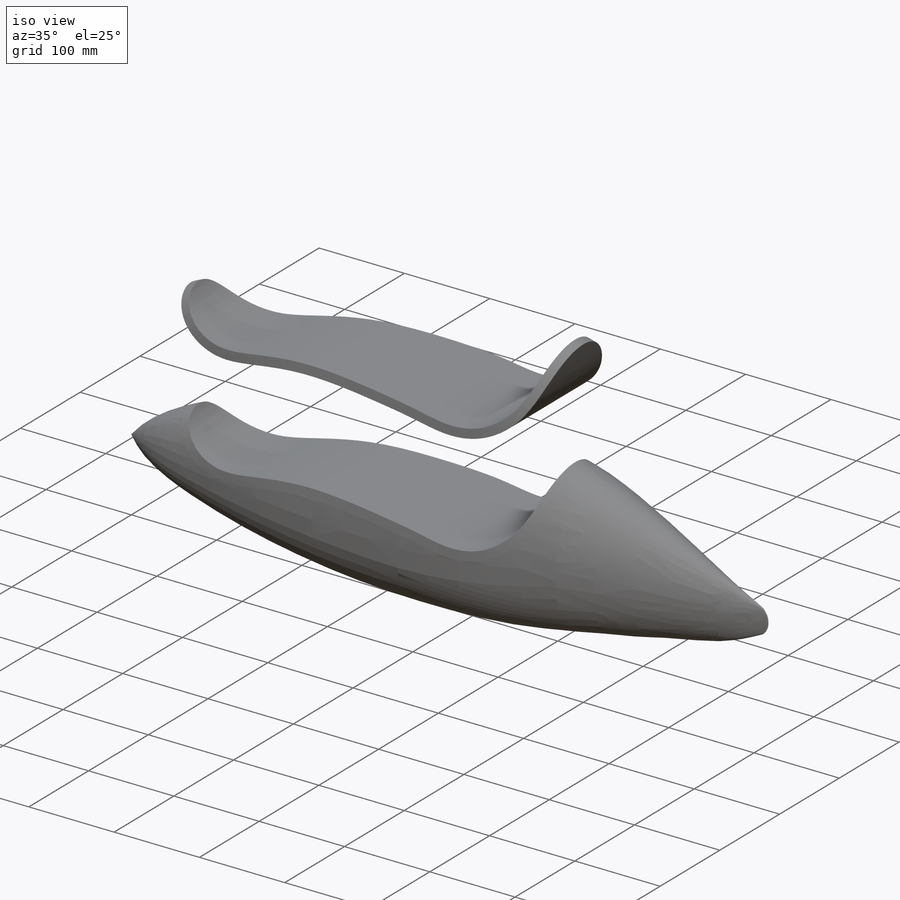
[diagram: iso view]
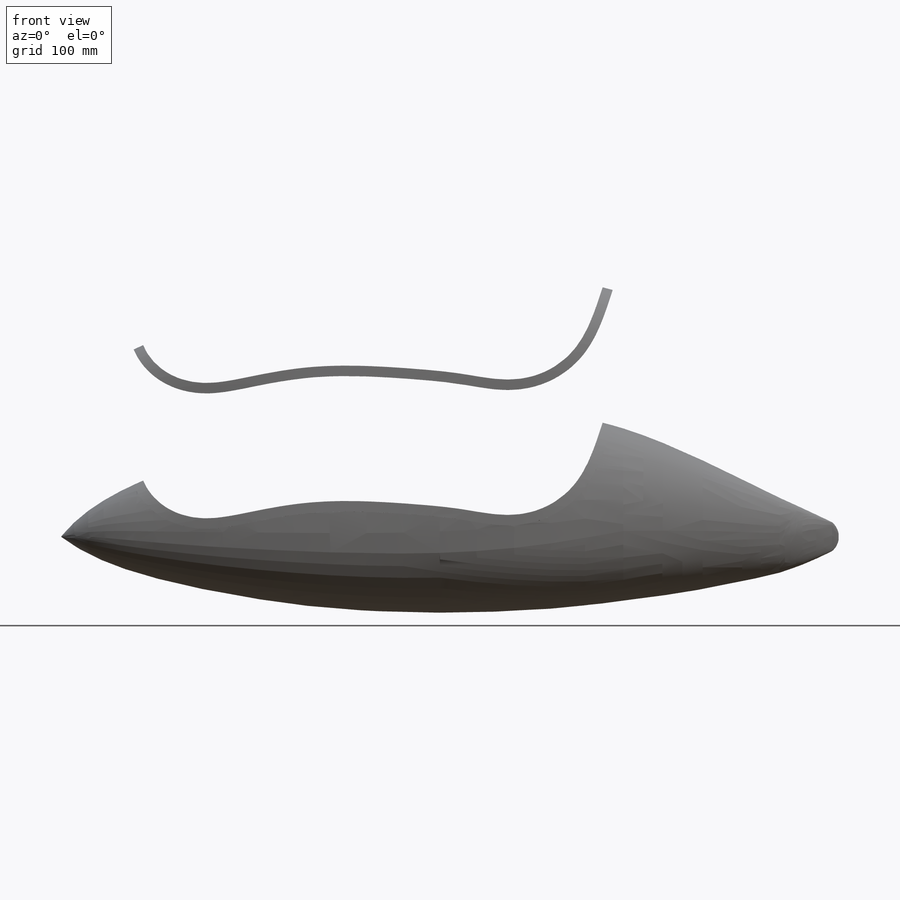
[diagram: front view]
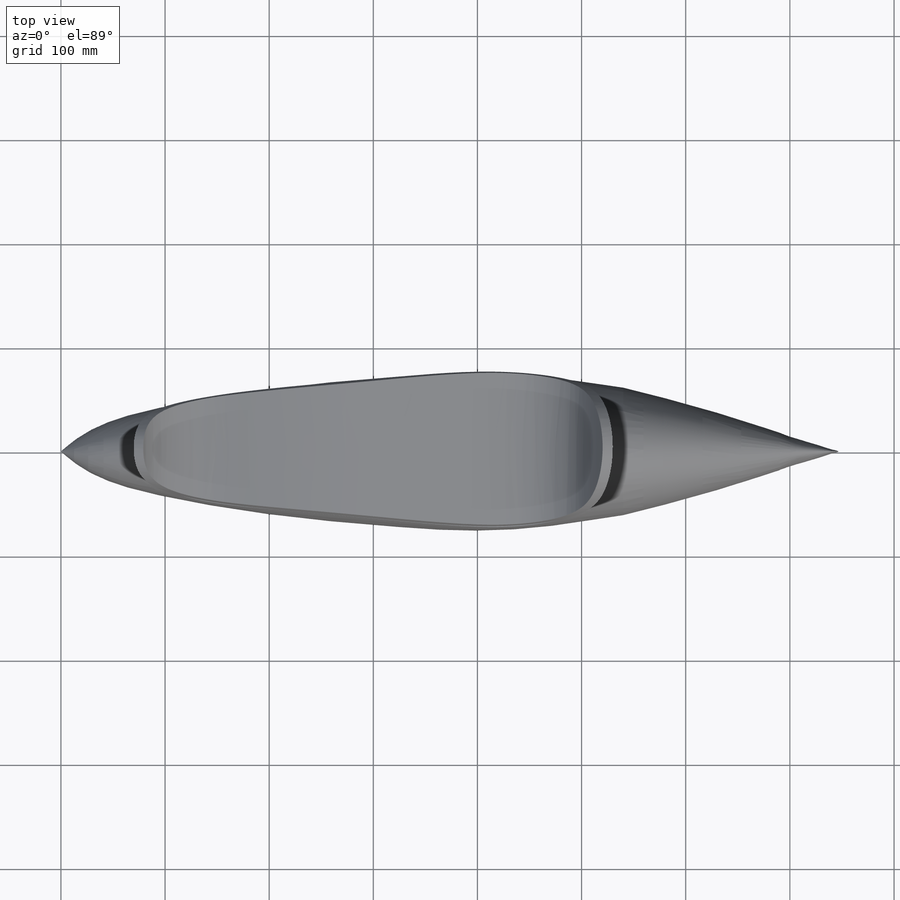
[diagram: top view]
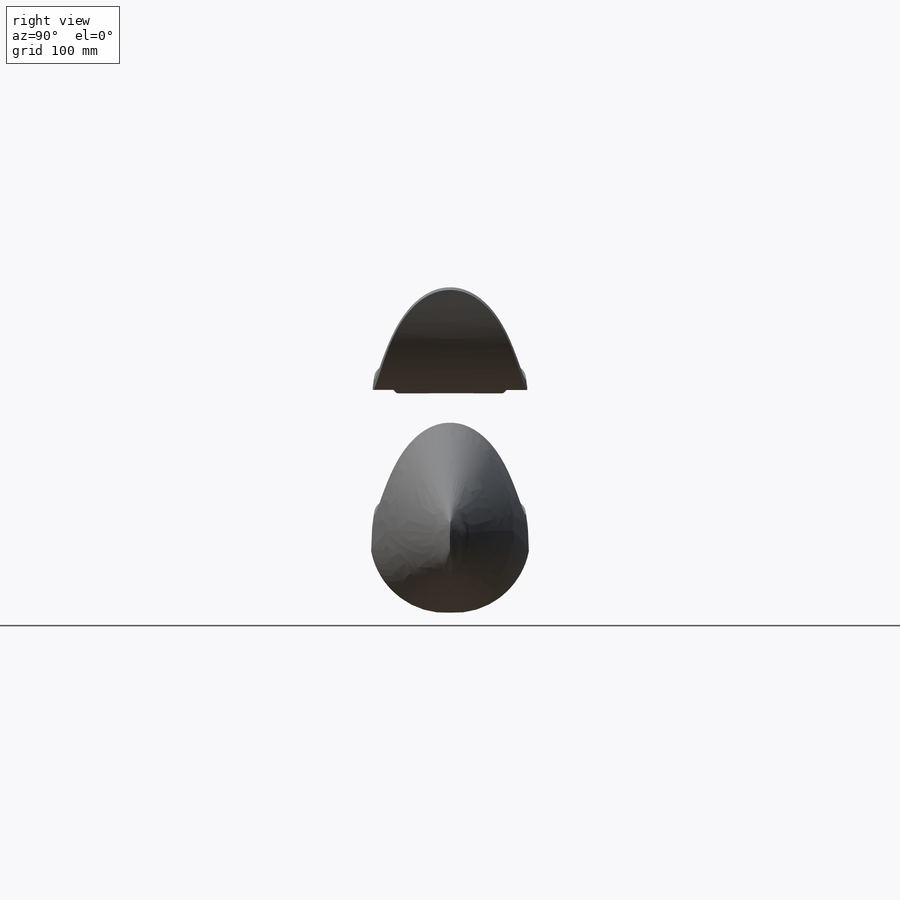
[diagram: right view]
SOLIDWORKS PART (.sldprt)
format: sldprt  version: not decoded by parser v0  size: 1,254,400 bytes
history: native  units: mm
features: sketch x32, plane x20, material x1, cut_extrude x1, move_body x1 (+9 scaffold rows collapsed)
feature tree (64):
  scaffold x9  (default folders/planes/origin — collapsed)
  material  "Material <nicht festgelegt>"
  plane  "Ebene vorne"
  plane  "Ebene oben"
  plane  "Ebene rechts"
  sketch  "Skizze Seitenansicht"  dims[c1.D13=1.0mm c1.D22=18.0mm c1.D1=22.5mm c1.D2=90.0mm c1.D3=165.0mm c1.D4=240.0mm c1.D5=315.0mm c1.D6=390.0mm c1.D7=465.0mm c1.D8=540.0mm c1.D9=615.0mm c1.D10=690.0mm c1.D11=747.0mm c1.D12=0.5mm c2.D12=72.8mm c2.D13=55.8mm c2.D14=14.4mm c2.D15=39.6mm c2.D16=66.8mm c2.D17=72.0mm c2.D18=69.4mm c2.D19=61.4mm c2.D20=50.4mm c2.D21=34.6mm c2.D22=18.0mm c2.D23=194.6mm c2.D24=36.4mm c2.D25=98.2mm c2.D26=142.0mm c2.D27=172.5mm c2.D28=189.4mm c2.D29=189.3mm c2.D30=165.4mm c2.D31=124.2mm c2.D32=72.0mm c3.D22=0.5mm c3.D33=1.0mm c3.D34=1.0mm c3.D35=0.2mm c4.D33=6.0mm c4.D34=0.25mm]
  sketch  "Skizze Draufsicht"  dims[c1.D21=1.0mm c1.D1=75.7mm c1.D2=75.7mm c1.D3=17.1mm c1.D4=34.2mm c1.D5=41.0mm c1.D6=41.0mm c1.D7=55.0mm c1.D8=55.0mm c1.D9=64.8mm c1.D10=64.8mm c1.D11=72.0mm c1.D12=72.0mm c1.D13=72.0mm c1.D14=72.0mm c1.D15=61.2mm c1.D16=61.2mm c1.D17=41.5mm c1.D18=41.5mm c1.D19=18.0mm c1.D20=18.0mm c2.D4=17.1mm c2.D21=~0.442665mm c2.D22=22.5mm c2.D23=90.0mm c3.D4=747.0mm c3.D24=465.0mm c3.D13=~73.268929mm c3.D25=165.0mm c3.D26=240.0mm c3.D27=315.0mm c3.D28=390.0mm c3.D16=540.0mm c3.D29=615.0mm c3.D30=690.0mm c3.D31=22.5mm c3.D22=17.1mm c4.D31=17.1mm c4.D32=0.5mm c4.D4=0.25mm c4.D33=~0.152545mm]
  plane  "Ebene1"  Offset=30mm
  sketch  "Skizze7"
  sketch  "Skizze Spitze rumpf"
  plane  "Ebene spannt 1"
  plane  "Ebene spannt 2"
  plane  "Ebene spannt 3"
  plane  "Ebene spannt 4"
  plane  "Ebene spannt 5"
  plane  "Ebene spannt 6"
  plane  "Ebene spannt 7"
  plane  "Ebene spannt 8"
  plane  "Ebene spannt 9"
  plane  "Ebene spannt 10"
  plane  "Ebene spannt 11 Ende"
  sketch  "Skizze spannt 1"  dims[c1.D1=34.2mm c2.D1=~75.713898deg]
  sketch  "Skizze spannt 2"  dims[D1=5.5mm D2=5.5mm]
  sketch  "Skizze spannt 3"  dims[D1=10.8mm]
  sketch  "Skizze spannt 4"  dims[D1=14.4mm D2=14.4mm]
  sketch  "Skizze spannt 5"  dims[D1=16.2mm D2=16.2mm]
  sketch  "Skizze spannt 6"  dims[D1=14.4mm]
  sketch  "Skizze spannt 7"  dims[D1=7.2mm]
  sketch  "Skizze spannt 8"  dims[D1=5.4mm]
  sketch  "Skizze spannt 9"  dims[D1=5.4mm]
  sketch  "Skizze spannt 10"  dims[D2=~2.279534mm D1=3.6mm]
  sketch  "Skizze spannt 11 Ende"  dims[c1.D1=3.0mm c2.D1=~78.723492deg]
  sketch  "Skizze Leit drauf rechts"
  sketch  "Skizze Leit Drauf Links"
  plane  "Ebene 0 Spannt 0"
  sketch  "Skizze 0 spannt 0"  dims[D1=0.5mm]
  sketch  "Skizze spannt 8<3>"
  sketch  "Skizze Seitenansicht<9>"
  sketch  "Skizze25"
  sketch  "Skizze26"
  plane  "Ebene spannt hinten zwischen 1"
  plane  "Ebene spannt hinten zwischen 2"
  plane  "Ebene spannt hinten zwischen 3"
  plane  "Ebene spannt hinten zwischen 4"
  sketch  "Skizze spannt hinten zwischen 1"
  sketch  "Skizze spannt hinten zwischen 2"
  sketch  "Skizze spannt hinten zwischen 3"
  sketch  "Skizze spannt hinten zwischen 4"
  sketch  "Skizze spannt 10<5>"
  sketch  "Skizze Seitenansicht<12>"
  sketch  "Skizze spannt hinten zwischen 4<2>"
  sketch  "Skizze Seitenansicht<13>"
  sketch  "Skizze Haubenausschnitt"
  sketch  "Skizze27"  dims[D1=10.0mm]
  cut_extrude  "Schnitt-Linear austragen1"  [1 undecoded]
  move_body  "Körper-Verschieben/Kopieren1"
decode coverage: 15 of 34 modeling features carry decoded parameters
note: ~ marks probable driven/reference dimensions
note: 1 parameter value undecoded
note: suppression state not decoded; provenance and decode notes live in map.json
